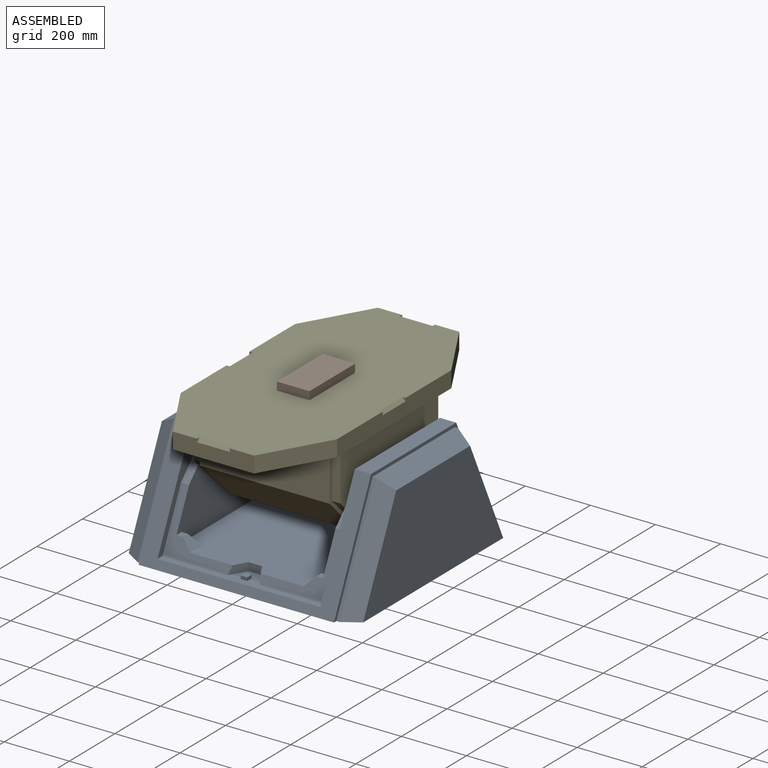
[diagram: assembled view]
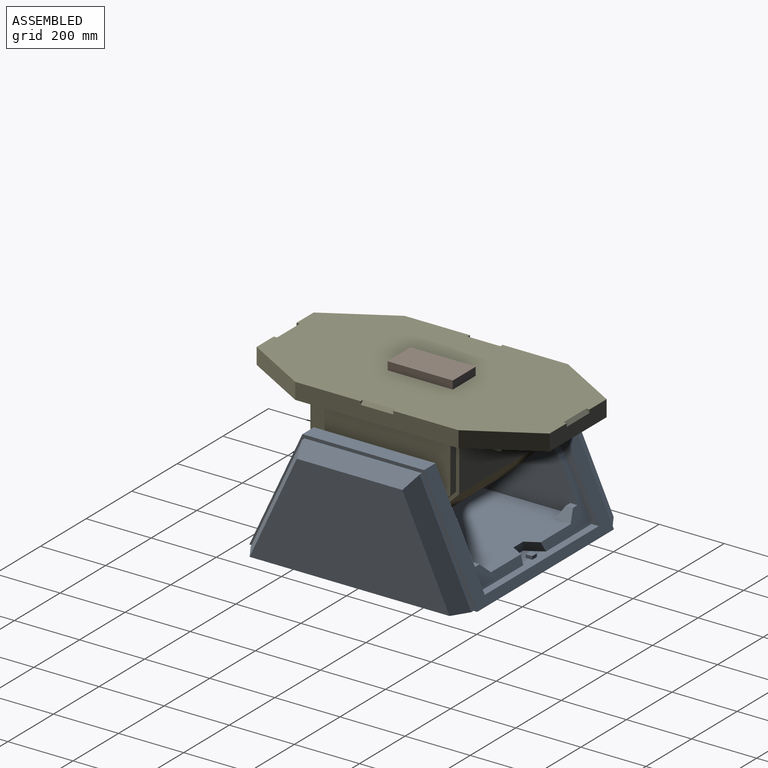
[diagram: assembled view, second angle]
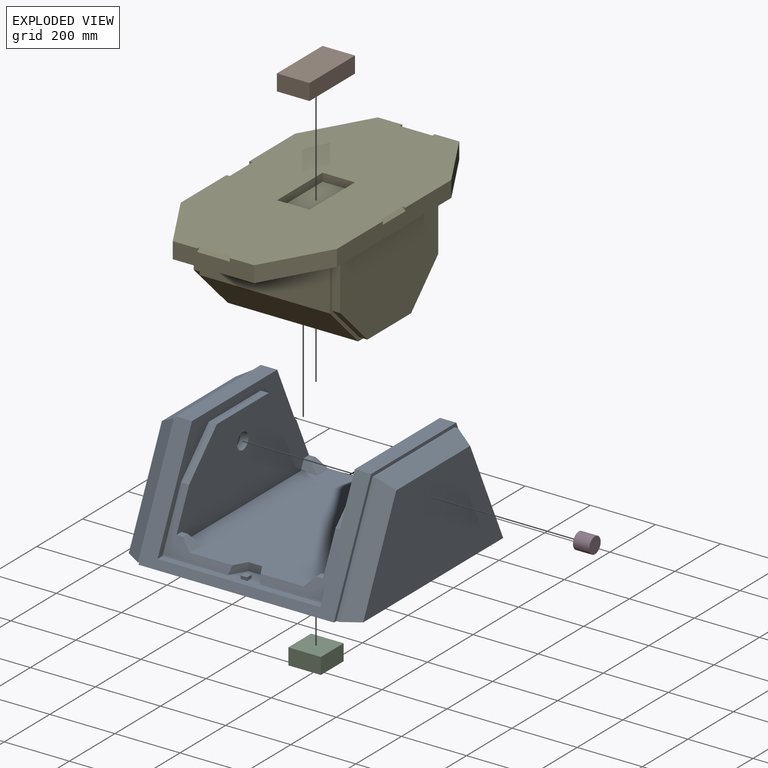
[diagram: exploded view]
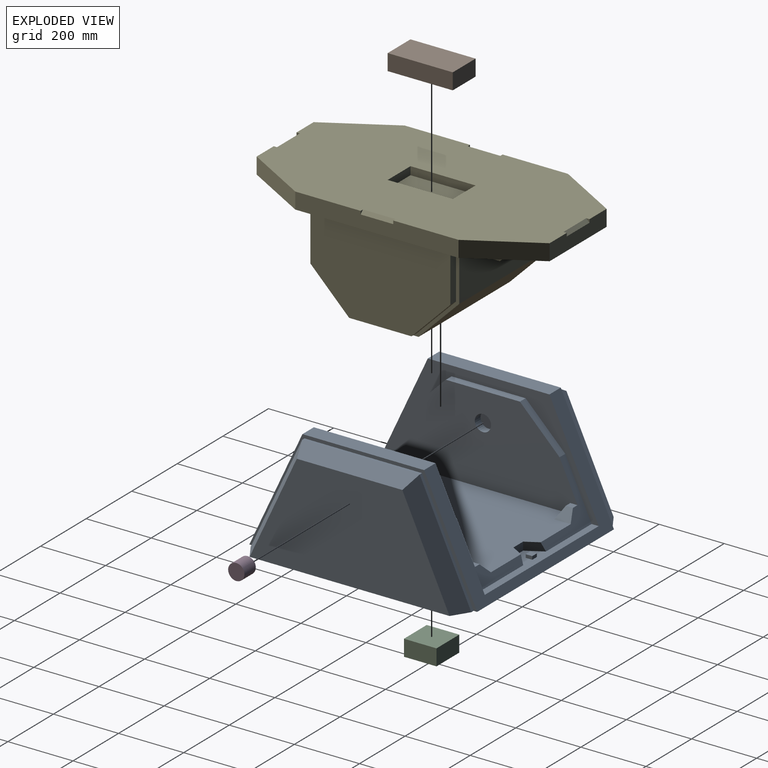
[diagram: exploded view, second angle]
ASSEMBLY  parts=5 mates=4
PART A: 73 faces, bbox 720x700x350 mm
  f0: plane 700x350mm, normal (-1,0,0), area 11285.4mm2, adj f4,f5,f6,f7,f37,f38,f39
  f1: plane 500x72.07mm, normal (0,0,1), area 14190.4mm2, adj f5,f8,f10,f21,f22,f29,f30,f31
  f2: plane 500x72.07mm, normal (0,0,1), area 14190.4mm2, adj f6,f8,f9,f23,f24,f25,f26,f27
  f3: plane 609.23x450mm, normal (0,0,1), area 259216.7mm2, adj f9,f10,f12,f15,f18,f19,f20,f21
  f4: plane 373.58x50mm, normal (0,0,1), area 18679.2mm2, adj f0,f5,f6,f8
  f5: plane 600x350mm, normal (0,-0.91,0.42), area 52410.5mm2, adj f0,f1,f4,f7,f8,f44,f45,f46
  f6: plane 600x350mm, normal (0,0.91,0.42), area 52410.5mm2, adj f0,f2,f4,f7,f8,f44,f45,f46
  f7: plane 720x700mm, normal (0,0,-1), area 488166.7mm2, adj f0,f5,f6,f33,f34,f35,f37,f38
  f8: plane 676.68x325mm, normal (1,0,0), area 32563.6mm2, adj f1,f2,f4,f5,f6,f9,f10,f11
  f9: plane 206.73x173.21mm, normal (0,0.91,0.42), area 10856.5mm2, adj f2,f3,f8,f12,f14,f16,f20,f24
  f10: plane 206.73x173.21mm, normal (0,-0.91,0.42), area 10856.5mm2, adj f1,f3,f8,f12,f13,f17,f19,f21
  f11: plane 227.43x25mm, normal (0,0,1), area 5685.7mm2, adj f8,f12,f13,f14
  f12: plane 581.26x270mm, normal (1,0,0), area 118458.7mm2, adj f3,f9,f10,f11,f13,f14,f15,f16
  f13: plane 121.79x121.79mm, normal (0,-0.71,0.71), area 4306mm2, adj f8,f10,f11,f12
  f14: plane 121.79x121.79mm, normal (0,0.71,0.71), area 4306mm2, adj f8,f9,f11,f12
  f15: plane 50x30mm, normal (0,-0.91,0.42), area 1158.5mm2, adj f3,f12,f16,f20
  f16: plane 22.02x20mm, normal (0,0,1), area 440.4mm2, adj f9,f12,f15,f20
  f17: plane 22.02x20mm, normal (0,0,1), area 440.4mm2, adj f10,f12,f18,f19
  f18: plane 50x30mm, normal (0,0.91,0.42), area 1158.5mm2, adj f3,f12,f17,f19
  f19: plane 50x30mm, normal (0.71,0,0.71), area 1527.8mm2, adj f3,f10,f17,f18
  f20: plane 50x30mm, normal (0.71,0,0.71), area 1527.8mm2, adj f3,f9,f15,f16
  f21: plane 50x28.87mm, normal (0.87,-0.5,0), area 1275.1mm2, adj f1,f3,f10,f22
  f22: plane 42.27x25mm, normal (0,-1,0), area 1056.6mm2, adj f1,f3,f21,f59
  f23: plane 42.27x25mm, normal (0,1,0), area 1056.6mm2, adj f2,f3,f24,f60
  f24: plane 50x28.87mm, normal (0.87,0.5,0), area 1275.1mm2, adj f2,f3,f9,f23
  f25: plane 20x10mm, normal (0,1,0), area 200mm2, adj f2,f27,f28,f61
  f26: plane 20x10mm, normal (0,-1,0), area 200mm2, adj f2,f27,f28,f61
  f27: plane 20x10mm, normal (-1,0,0), area 200mm2, adj f2,f25,f26,f28
  f28: plane 20x20mm, normal (0,0,1), area 400mm2, adj f25,f26,f27,f61
  f29: plane 20x10mm, normal (0,-1,0), area 200mm2, adj f1,f30,f32,f62
  f30: plane 20x10mm, normal (-1,0,0), area 200mm2, adj f1,f29,f31,f32
  f31: plane 20x10mm, normal (0,1,0), area 200mm2, adj f1,f30,f32,f62
  f32: plane 20x20mm, normal (0,0,1), area 400mm2, adj f29,f30,f31,f62
  f33: plane 100x25mm, normal (0,1,0), area 2500mm2, adj f7,f35,f36,f63
  f34: plane 100x25mm, normal (0,-1,0), area 2500mm2, adj f7,f35,f36,f63
  f35: plane 100x25mm, normal (1,0,0), area 2500mm2, adj f7,f33,f34,f36
  f36: plane 100x100mm, normal (0,0,-1), area 10000mm2, adj f33,f34,f35,f63
  f37: plane 340x158.54mm, normal (0,-0.91,0.42), area 3751.5mm2, adj f0,f7,f39,f41
  f38: plane 340x158.54mm, normal (0,0.91,0.42), area 3751.5mm2, adj f0,f7,f39,f43
  f39: plane 360.84x10mm, normal (0,0,1), area 3608.4mm2, adj f0,f37,f38,f42
  f40: plane 614.23x311.13mm, normal (-1,0,0), area 145966.4mm2, adj f7,f41,f42,f43
  f41: plane 340x176.94mm, normal (-0.5,-0.78,0.37), area 20739.7mm2, adj f7,f37,f40,f42
  f42: plane 360.84x50mm, normal (-0.5,0,0.87), area 19771.5mm2, adj f39,f40,f41,f43
  f43: plane 340x176.94mm, normal (-0.5,0.78,0.37), area 20739.7mm2, adj f7,f38,f40,f42
  f44: plane 700x350mm, normal (1,0,0), area 11285.4mm2, adj f5,f6,f7,f45,f64,f65,f66
  f45: plane 373.58x50mm, normal (0,0,1), area 18679.2mm2, adj f5,f6,f44,f46
  f46: plane 676.68x325mm, normal (-1,0,0), area 32563.6mm2, adj f1,f2,f5,f6,f45,f47,f48,f49
  f47: plane 206.73x173.21mm, normal (0,0.91,0.42), area 10856.5mm2, adj f2,f3,f46,f50,f52,f54,f58,f60
  f48: plane 206.73x173.21mm, normal (0,-0.91,0.42), area 10856.5mm2, adj f1,f3,f46,f50,f51,f55,f57,f59
  f49: plane 227.43x25mm, normal (0,0,1), area 5685.7mm2, adj f46,f50,f51,f52
  f50: plane 581.26x270mm, normal (-1,0,0), area 120422.2mm2, adj f3,f47,f48,f49,f51,f52,f53,f54
  f51: plane 121.79x121.79mm, normal (0,-0.71,0.71), area 4306mm2, adj f46,f48,f49,f50
  f52: plane 121.79x121.79mm, normal (0,0.71,0.71), area 4306mm2, adj f46,f47,f49,f50
  f53: plane 50x30mm, normal (0,-0.91,0.42), area 1158.5mm2, adj f3,f50,f54,f58
  f54: plane 22.02x20mm, normal (0,0,1), area 440.4mm2, adj f47,f50,f53,f58
  f55: plane 22.02x20mm, normal (0,0,1), area 440.4mm2, adj f48,f50,f56,f57
  f56: plane 50x30mm, normal (0,0.91,0.42), area 1158.5mm2, adj f3,f50,f55,f57
  f57: plane 50x30mm, normal (-0.71,0,0.71), area 1527.8mm2, adj f3,f48,f55,f56
  f58: plane 50x30mm, normal (-0.71,0,0.71), area 1527.8mm2, adj f3,f47,f53,f54
  f59: plane 50x28.87mm, normal (-0.87,-0.5,0), area 1275.1mm2, adj f1,f3,f22,f48
  f60: plane 50x28.87mm, normal (-0.87,0.5,0), area 1275.1mm2, adj f2,f3,f23,f47
  f61: plane 20x10mm, normal (1,0,0), area 200mm2, adj f2,f25,f26,f28
  f62: plane 20x10mm, normal (1,0,0), area 200mm2, adj f1,f29,f31,f32
  f63: plane 100x25mm, normal (-1,0,0), area 2500mm2, adj f7,f33,f34,f36
  f64: plane 340x158.54mm, normal (0,-0.91,0.42), area 3751.5mm2, adj f7,f44,f66,f68
  f65: plane 340x158.54mm, normal (0,0.91,0.42), area 3751.5mm2, adj f7,f44,f66,f70
  f66: plane 360.84x10mm, normal (0,0,1), area 3608.4mm2, adj f44,f64,f65,f69
  f67: plane 614.23x311.13mm, normal (1,0,0), area 145966.4mm2, adj f7,f68,f69,f70
  f68: plane 340x176.94mm, normal (0.5,-0.78,0.37), area 20739.7mm2, adj f7,f64,f67,f69
  f69: plane 360.84x50mm, normal (0.5,0,0.87), area 19771.5mm2, adj f66,f67,f68,f70
  f70: plane 340x176.94mm, normal (0.5,0.78,0.37), area 20739.7mm2, adj f7,f65,f67,f69
  f71: cylinder r=25mm len=50mm, axis (1,0,0), area 3927mm2, adj f12,f72
  f72: plane 50x50mm, normal (1,0,0), area 1963.5mm2, adj f71
PART B: 6 faces, bbox 100x200x50 mm
  f0: plane 100x50mm, normal (0,1,0), area 5000mm2, adj f1,f3,f4,f5
  f1: plane 200x50mm, normal (1,0,0), area 10000mm2, adj f0,f2,f4,f5
  f2: plane 100x50mm, normal (0,-1,0), area 5000mm2, adj f1,f3,f4,f5
  f3: plane 200x50mm, normal (-1,0,0), area 10000mm2, adj f0,f2,f4,f5
  f4: plane 200x100mm, normal (0,0,1), area 20000mm2, adj f0,f1,f2,f3
  f5: plane 200x100mm, normal (0,0,-1), area 20000mm2, adj f0,f1,f2,f3
PART C: 6 faces, bbox 100x100x50 mm
  f0: plane 100x50mm, normal (0,-1,0), area 5000mm2, adj f1,f3,f4,f5
  f1: plane 100x50mm, normal (1,0,0), area 5000mm2, adj f0,f2,f4,f5
  f2: plane 100x50mm, normal (0,1,0), area 5000mm2, adj f1,f3,f4,f5
  f3: plane 100x50mm, normal (-1,0,0), area 5000mm2, adj f0,f2,f4,f5
  f4: plane 100x100mm, normal (0,0,-1), area 10000mm2, adj f0,f1,f2,f3
  f5: plane 100x100mm, normal (0,0,1), area 10000mm2, adj f0,f1,f2,f3
PART D: 3 faces, bbox 50x50x50 mm
  f0: cylinder r=25mm len=50mm, axis (1,0,0), area 7854mm2, adj f1,f2
  f1: plane 50x50mm, normal (-1,0,0), area 1963.5mm2, adj f0
  f2: plane 50x50mm, normal (1,0,0), area 1963.5mm2, adj f0
PART E: 88 faces, bbox 480x900x325 mm
  f0: plane 900x480mm, normal (0,0,1), area 362187.3mm2, adj f1,f2,f3,f25,f26,f37,f38,f39
  f1: plane 250x50mm, normal (0,-1,0), area 11500mm2, adj f0,f24,f26,f50,f52,f67,f84
  f2: plane 250x50mm, normal (0,1,0), area 11500mm2, adj f0,f24,f25,f49,f51,f66,f83
  f3: plane 501.63x50mm, normal (-1,0,0), area 24081.4mm2, adj f0,f24,f25,f26,f47,f48,f53
  f4: plane 130x30mm, normal (0,0,-1), area 2400mm2, adj f10,f21,f23,f45,f46,f63,f65,f80
  f5: plane 130x30mm, normal (0,-1,0), area 2400mm2, adj f21,f23,f24,f44,f46,f63,f65,f80
  f6: plane 130x30mm, normal (0,0,-1), area 2400mm2, adj f8,f9,f22,f42,f43,f55,f64,f79
  f7: plane 130x30mm, normal (0,1,0), area 2400mm2, adj f8,f22,f24,f41,f42,f55,f64,f79
  f8: plane 45x45mm, normal (0,0.71,-0.71), area 954.6mm2, adj f6,f7,f22,f42
  f9: plane 400x150mm, normal (0,1,0), area 50250mm2, adj f6,f12,f13,f22,f24,f56,f64
  f10: plane 400x150mm, normal (0,-1,0), area 50250mm2, adj f4,f12,f14,f21,f24,f56,f63
  f11: plane 400x200mm, normal (0,0,-1), area 80000mm2, adj f12,f13,f14,f56
  f12: plane 450x275mm, normal (-1,0,0), area 8369.8mm2, adj f9,f10,f11,f13,f14,f15,f16,f17
  f13: plane 400x125mm, normal (0,0.71,-0.71), area 70710.7mm2, adj f9,f11,f12,f56
  f14: plane 400x125mm, normal (0,-0.71,-0.71), area 70710.7mm2, adj f10,f11,f12,f56
  f15: plane 145.86x25mm, normal (0,-1,0), area 3646.4mm2, adj f12,f16,f20,f24
  f16: plane 119.14x119.14mm, normal (0,-0.71,-0.71), area 4212.3mm2, adj f12,f15,f17,f20
  f17: plane 191.72x25mm, normal (0,0,-1), area 4792.9mm2, adj f12,f16,f18,f20
  f18: plane 119.14x119.14mm, normal (0,0.71,-0.71), area 4212.3mm2, adj f12,f17,f19,f20
  f19: plane 145.86x25mm, normal (0,1,0), area 3646.4mm2, adj f12,f18,f20,f24
  f20: plane 430x265mm, normal (-1,0,0), area 97791.7mm2, adj f15,f16,f17,f18,f19,f24,f86
  f21: plane 75x75mm, normal (-1,0,0), area 4612.5mm2, adj f4,f5,f10,f23,f24
  f22: plane 75x75mm, normal (-1,0,0), area 4612.5mm2, adj f6,f7,f8,f9,f24
  f23: plane 45x45mm, normal (0,-0.71,-0.71), area 954.6mm2, adj f4,f5,f21,f46
  f24: plane 900x480mm, normal (0,0,-1), area 163587.3mm2, adj f1,f2,f3,f5,f7,f9,f10,f12
  f25: plane 199.19x115mm, normal (-0.87,0.5,0), area 11500mm2, adj f0,f2,f3,f24
  f26: plane 199.19x115mm, normal (-0.87,-0.5,0), area 11500mm2, adj f0,f1,f3,f24
  f27: plane 20x10mm, normal (0,-1,0), area 200mm2, adj f24,f28,f30,f31
  f28: plane 20x10mm, normal (1,0,0), area 200mm2, adj f24,f27,f29,f31
  f29: plane 20x10mm, normal (0,1,0), area 200mm2, adj f24,f28,f30,f31
  f30: plane 20x10mm, normal (-1,0,0), area 200mm2, adj f24,f27,f29,f31
  f31: plane 20x20mm, normal (0,0,-1), area 400mm2, adj f27,f28,f29,f30
  f32: plane 20x10mm, normal (0,-1,0), area 200mm2, adj f24,f33,f35,f36
  f33: plane 20x10mm, normal (1,0,0), area 200mm2, adj f24,f32,f34,f36
  f34: plane 20x10mm, normal (0,1,0), area 200mm2, adj f24,f33,f35,f36
  f35: plane 20x10mm, normal (-1,0,0), area 200mm2, adj f24,f32,f34,f36
  f36: plane 20x20mm, normal (0,0,-1), area 400mm2, adj f32,f33,f34,f35
  f37: plane 100x25mm, normal (0,-1,0), area 2500mm2, adj f0,f39,f40,f78
  f38: plane 100x25mm, normal (0,1,0), area 2500mm2, adj f0,f39,f40,f78
  f39: plane 200x25mm, normal (1,0,0), area 5000mm2, adj f0,f37,f38,f40
  f40: plane 200x100mm, normal (0,0,1), area 20000mm2, adj f37,f38,f39,f78
  f41: plane 100x60mm, normal (0,0,-1), area 6000mm2, adj f7,f42,f43,f79
  f42: plane 60x60mm, normal (1,0,0), area 2587.5mm2, adj f6,f7,f8,f41,f43
  f43: plane 100x60mm, normal (0,1,0), area 6000mm2, adj f6,f41,f42,f79
  f44: plane 100x60mm, normal (0,0,-1), area 6000mm2, adj f5,f45,f46,f80
  f45: plane 100x60mm, normal (0,-1,0), area 6000mm2, adj f4,f44,f46,f80
  f46: plane 60x60mm, normal (1,0,0), area 2587.5mm2, adj f4,f5,f23,f44,f45
  f47: plane 10x10mm, normal (0,1,0), area 50mm2, adj f0,f3,f53
  f48: plane 10x10mm, normal (0,-1,0), area 50mm2, adj f0,f3,f53
  f49: plane 10x10mm, normal (1,0,0), area 50mm2, adj f0,f2,f51
  f50: plane 10x10mm, normal (1,0,0), area 50mm2, adj f0,f1,f52
  f51: plane 100x10mm, normal (0,0.71,0.71), area 1414.2mm2, adj f0,f2,f49,f83
  f52: plane 100x10mm, normal (0,-0.71,0.71), area 1414.2mm2, adj f0,f1,f50,f84
  f53: plane 100x10mm, normal (-0.71,0,0.71), area 1414.2mm2, adj f0,f3,f47,f48
  f54: plane 501.63x50mm, normal (1,0,0), area 24081.4mm2, adj f0,f24,f66,f67,f81,f82,f85
  f55: plane 45x45mm, normal (0,0.71,-0.71), area 954.6mm2, adj f6,f7,f64,f79
  f56: plane 450x275mm, normal (1,0,0), area 8369.8mm2, adj f9,f10,f11,f13,f14,f24,f57,f58
  f57: plane 145.86x25mm, normal (0,-1,0), area 3646.4mm2, adj f24,f56,f58,f62
  f58: plane 119.14x119.14mm, normal (0,-0.71,-0.71), area 4212.3mm2, adj f56,f57,f59,f62
  f59: plane 191.72x25mm, normal (0,0,-1), area 4792.9mm2, adj f56,f58,f60,f62
  f60: plane 119.14x119.14mm, normal (0,0.71,-0.71), area 4212.3mm2, adj f56,f59,f61,f62
  f61: plane 145.86x25mm, normal (0,1,0), area 3646.4mm2, adj f24,f56,f60,f62
  f62: plane 430x265mm, normal (1,0,0), area 99755.2mm2, adj f24,f57,f58,f59,f60,f61
  f63: plane 75x75mm, normal (1,0,0), area 4612.5mm2, adj f4,f5,f10,f24,f65
  f64: plane 75x75mm, normal (1,0,0), area 4612.5mm2, adj f6,f7,f9,f24,f55
  f65: plane 45x45mm, normal (0,-0.71,-0.71), area 954.6mm2, adj f4,f5,f63,f80
  f66: plane 199.19x115mm, normal (0.87,0.5,0), area 11500mm2, adj f0,f2,f24,f54
  f67: plane 199.19x115mm, normal (0.87,-0.5,0), area 11500mm2, adj f0,f1,f24,f54
  f68: plane 20x10mm, normal (0,-1,0), area 200mm2, adj f24,f69,f71,f72
  f69: plane 20x10mm, normal (-1,0,0), area 200mm2, adj f24,f68,f70,f72
  f70: plane 20x10mm, normal (0,1,0), area 200mm2, adj f24,f69,f71,f72
  f71: plane 20x10mm, normal (1,0,0), area 200mm2, adj f24,f68,f70,f72
  f72: plane 20x20mm, normal (0,0,-1), area 400mm2, adj f68,f69,f70,f71
  f73: plane 20x10mm, normal (0,-1,0), area 200mm2, adj f24,f74,f76,f77
  f74: plane 20x10mm, normal (-1,0,0), area 200mm2, adj f24,f73,f75,f77
  f75: plane 20x10mm, normal (0,1,0), area 200mm2, adj f24,f74,f76,f77
  f76: plane 20x10mm, normal (1,0,0), area 200mm2, adj f24,f73,f75,f77
  f77: plane 20x20mm, normal (0,0,-1), area 400mm2, adj f73,f74,f75,f76
  f78: plane 200x25mm, normal (-1,0,0), area 5000mm2, adj f0,f37,f38,f40
  f79: plane 60x60mm, normal (-1,0,0), area 2587.5mm2, adj f6,f7,f41,f43,f55
  f80: plane 60x60mm, normal (-1,0,0), area 2587.5mm2, adj f4,f5,f44,f45,f65
  f81: plane 10x10mm, normal (0,1,0), area 50mm2, adj f0,f54,f85
  f82: plane 10x10mm, normal (0,-1,0), area 50mm2, adj f0,f54,f85
  f83: plane 10x10mm, normal (-1,0,0), area 50mm2, adj f0,f2,f51
  f84: plane 10x10mm, normal (-1,0,0), area 50mm2, adj f0,f1,f52
  f85: plane 100x10mm, normal (0.71,0,0.71), area 1414.2mm2, adj f0,f54,f81,f82
  f86: cylinder r=25mm len=50mm, axis (-1,0,0), area 3927mm2, adj f20,f87
  f87: plane 50x50mm, normal (-1,0,0), area 1963.5mm2, adj f86
PLACE A t=(717.66,-350,-171.92)mm
PLACE B t=(447.66,-225,233.08)mm
PLACE C t=(717.66,-350,-171.92)mm
PLACE D t=(447.66,-225,233.08)mm
PLACE E t=(447.66,-225,233.08)mm
MATE fastened C.f5 <-> A.f36  axis (0,0,1) through (-2.34,0,-146.92)mm
MATE revolute D.f0 <-> A.f71  axis (-1,0,0) through (-252.34,0,58.08)mm
MATE fastened B.f5 <-> E.f40  axis (0,0,-1) through (-2.34,0,258.08)mm
MATE fastened E.f86 <-> D.f0  axis (-1,0,0) through (-202.34,0,58.08)mm
